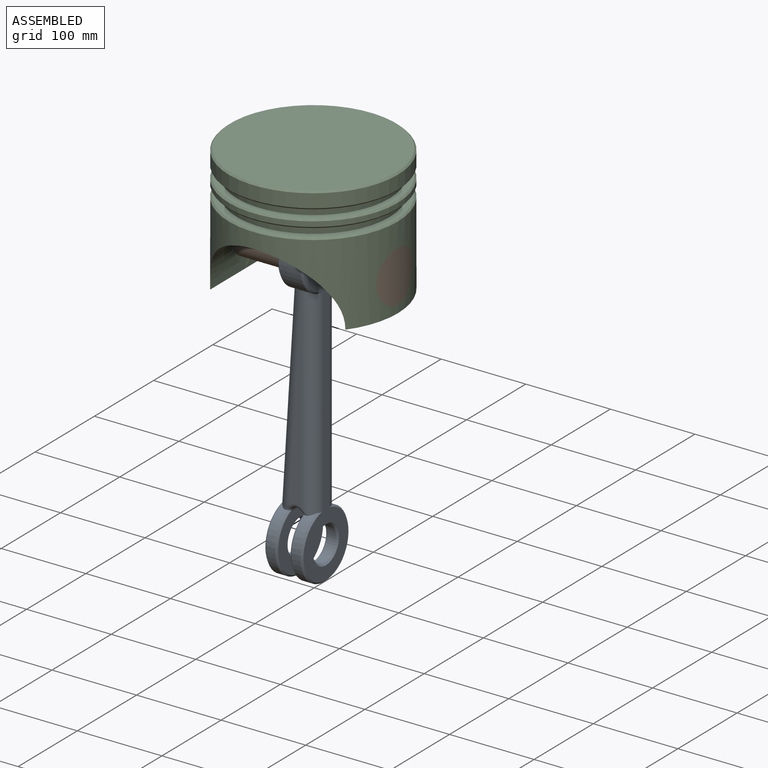
[diagram: assembled view]
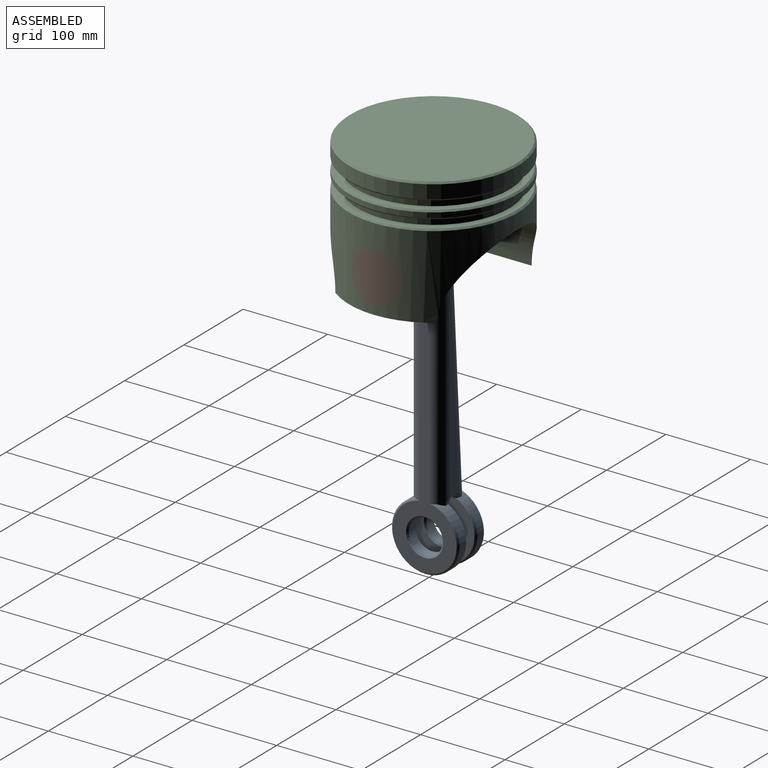
[diagram: assembled view, second angle]
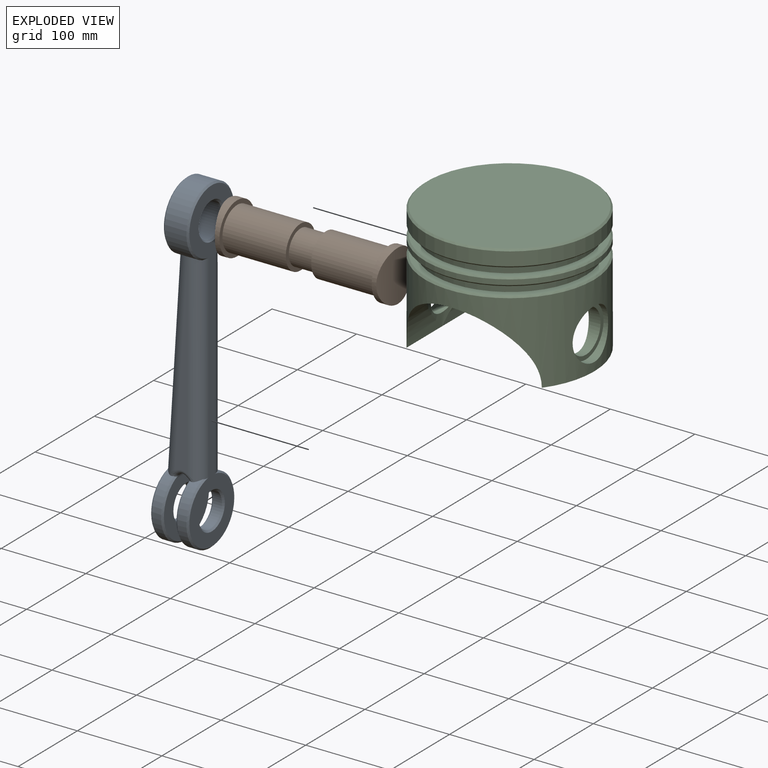
[diagram: exploded view]
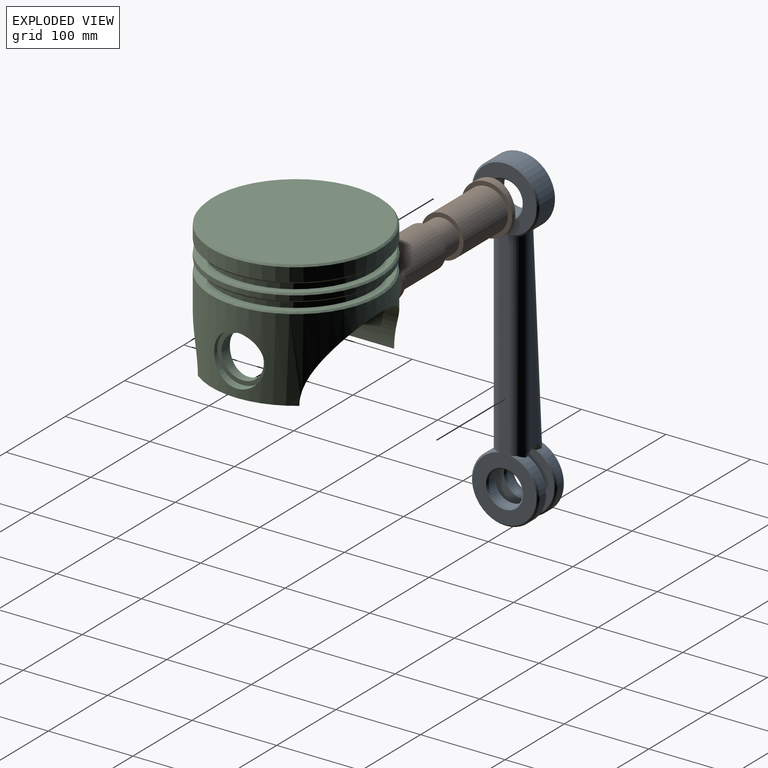
[diagram: exploded view, second angle]
ASSEMBLY  parts=3 mates=2
PART A: 37 faces, bbox 391.3x46.3x81.3 mm
  f0: plane 232.93x14.66mm, normal (0,0,-1), area 1703.8mm2, adj f6,f14,f17,f35
  f1: plane 232.93x14.66mm, normal (0,0,1), area 1703.8mm2, adj f6,f15,f16,f32
  f2: cylinder r=40mm len=80mm, axis (0,1,0), area 2382.3mm2, adj f14,f15,f22,f23,f33,f36
  f3: cylinder r=40mm len=80mm, axis (0,1,0), area 2379.2mm2, adj f16,f17,f24,f25,f31,f34
  f4: cylinder r=20mm len=40mm, axis (0,1,0), area 1382.3mm2, adj f26,f27
  f5: cylinder r=20mm len=40mm, axis (0,1,0), area 1382.3mm2, adj f28,f29
  f6: cylinder r=40mm len=80mm, axis (0,1,0), area 5569mm2, adj f0,f1,f14,f15,f16,f17,f20,f21
  f7: cylinder r=20mm len=40mm, axis (0,1,0), area 3267.3mm2, adj f18,f19
  f8: plane 386x76mm, normal (0,-1,0), area 8421mm2, adj f16,f17,f19,f21,f25,f29
  f9: plane 76x72.64mm, normal (0,1,0), area 2945.3mm2, adj f13,f22,f26
  f10: plane 76x70.5mm, normal (0,-1,0), area 2869.3mm2, adj f23,f27,f30
  f11: plane 76.08x72.7mm, normal (0,1,0), area 2882.5mm2, adj f24,f28,f30,f31,f34
  f12: plane 77.32x76.61mm, normal (0,1,0), area 2974.2mm2, adj f13,f14,f15,f18,f20
  f13: plane 240.79x31.31mm, normal (0.06,1,0), area 2500.2mm2, adj f9,f12,f14,f15,f22
  f14: cylinder r=14.9mm len=241.14mm, axis (1,-0.06,0), area 5523mm2, adj f0,f2,f6,f12,f13,f20,f22,f36
  f15: cylinder r=14.9mm len=241.14mm, axis (-1,0.06,0), area 5523mm2, adj f1,f2,f6,f12,f13,f20,f22,f33
  f16: cylinder r=14.9mm len=239.82mm, axis (1,0,0), area 5509.6mm2, adj f1,f3,f6,f8,f21,f25,f31
  f17: cylinder r=14.9mm len=239.82mm, axis (-1,0,0), area 5509.6mm2, adj f0,f3,f6,f8,f21,f25,f34
  f18: cone r=22mm half-angle=45deg, axis (0,1,0), area 373.2mm2, adj f7,f12
  f19: cone r=20mm half-angle=45deg, axis (0,-1,0), area 373.2mm2, adj f7,f8
  f20: cone r=40mm half-angle=45deg, axis (0,-1,0), area 635.4mm2, adj f6,f12,f14,f15
  f21: cone r=38mm half-angle=45deg, axis (0,1,0), area 642.8mm2, adj f6,f8,f16,f17
  f22: cone r=40mm half-angle=45deg, axis (0,-1,0), area 642.9mm2, adj f2,f9,f13,f14,f15
  f23: cone r=38mm half-angle=45deg, axis (0,1,0), area 599.9mm2, adj f2,f10,f30,f33,f36
  f24: cone r=38mm half-angle=45deg, axis (0,-1,0), area 593.5mm2, adj f3,f11,f31,f34
  f25: cone r=38mm half-angle=45deg, axis (0,1,0), area 642.8mm2, adj f3,f8,f16,f17
  f26: cone r=22mm half-angle=45deg, axis (0,1,0), area 373.2mm2, adj f4,f9
  f27: cone r=20mm half-angle=45deg, axis (0,-1,0), area 373.2mm2, adj f4,f10
  f28: cone r=20mm half-angle=45deg, axis (0,1,0), area 373.2mm2, adj f5,f11
  f29: cone r=20mm half-angle=45deg, axis (0,-1,0), area 373.2mm2, adj f5,f8
  f30: cylinder r=7.5mm len=39.38mm, axis (0,0,1), area 702mm2, adj f10,f11,f23,f31,f32,f33,f34,f35
  f31: bspline ~11.12x10.79mm, area 58.7mm2, adj f3,f11,f16,f24,f30,f32
  f32: torus R=12.5mm, axis (0,0,1), area 91.8mm2, adj f1,f30,f31,f33
  f33: bspline ~12.13x10.52mm, area 61.1mm2, adj f2,f15,f23,f30,f32
  f34: bspline ~11.12x10.79mm, area 58.7mm2, adj f3,f11,f17,f24,f30,f35
  f35: torus R=12.5mm, axis (0,0,1), area 91.8mm2, adj f0,f30,f34,f36
  f36: bspline ~12.13x10.52mm, area 61.1mm2, adj f2,f14,f23,f30,f35
PART B: 11 faces, bbox 200x60x60 mm
  f0: cylinder r=30mm len=60mm, axis (-1,0,0), area 1453.1mm2, adj f7,f10
  f1: cylinder r=30mm len=60mm, axis (1,0,0), area 1452.9mm2, adj f8,f9
  f2: cylinder r=25mm len=75mm, axis (-1,0,0), area 11781mm2, adj f4,f8
  f3: cylinder r=20mm len=40mm, axis (-1,0,0), area 3769.9mm2, adj f4,f5
  f4: plane 50x50mm, normal (-1,0,0), area 706.9mm2, adj f2,f3
  f5: plane 50x50mm, normal (1,0,0), area 706.9mm2, adj f3,f6
  f6: cylinder r=25mm len=75mm, axis (-1,0,0), area 11781mm2, adj f5,f7
  f7: plane 60x60mm, normal (1,0,0), area 863.9mm2, adj f0,f6
  f8: plane 60x60mm, normal (-1,0,0), area 863.9mm2, adj f1,f2
  f9: cylinder r=100mm len=60mm, axis (0,0,-1), area 2860mm2, adj f1
  f10: cylinder r=100mm len=60mm, axis (0,0,-1), area 2860.2mm2, adj f0
PART C: 27 faces, bbox 200x200x150 mm
  f0: cylinder r=25mm len=50mm, axis (-1,0,0), area 1883.5mm2, adj f2,f26
  f1: cylinder r=100mm len=200mm, axis (0,0,-1), area 33520.6mm2, adj f3,f4,f5,f6,f22,f23,f25
  f2: cylinder r=80mm len=160mm, axis (0,0,-1), area 35767.2mm2, adj f0,f5,f6,f7,f8
  f3: plane 120x20mm, normal (0,0,-1), area 1635mm2, adj f1,f5,f6
  f4: plane 120x20mm, normal (0,0,-1), area 1635mm2, adj f1,f5,f6
  f5: cylinder r=80mm len=160mm, axis (0,1,0), area 7620.5mm2, adj f1,f2,f3,f4
  f6: cylinder r=80mm len=160mm, axis (0,1,0), area 7622.5mm2, adj f1,f2,f3,f4
  f7: plane 160x160mm, normal (0,0,-1), area 20106.2mm2, adj f2
  f8: cylinder r=25mm len=50mm, axis (-1,0,0), area 1883.6mm2, adj f2,f24
  f9: plane 196x196mm, normal (0,0,-1), area 4725mm2, adj f11,f19
  f10: plane 196x196mm, normal (0,0,1), area 4725mm2, adj f11,f22
  f11: cylinder r=90mm len=180mm, axis (0,0,1), area 5654.9mm2, adj f9,f10
  f12: cylinder r=100mm len=200mm, axis (0,0,-1), area 3769.9mm2, adj f19,f20
  f13: cylinder r=90mm len=180mm, axis (0,0,1), area 5654.9mm2, adj f14,f15
  f14: plane 196x196mm, normal (0,0,-1), area 4725mm2, adj f13,f21
  f15: plane 196x196mm, normal (0,0,1), area 4725mm2, adj f13,f20
  f16: plane 196x196mm, normal (0,0,1), area 30171.9mm2, adj f18
  f17: cylinder r=100mm len=200mm, axis (0,0,-1), area 10053.1mm2, adj f18,f21
  f18: cone r=98mm half-angle=45deg, axis (0,0,-1), area 1759.4mm2, adj f16,f17
  f19: cone r=100mm half-angle=45deg, axis (0,0,1), area 1759.4mm2, adj f9,f12
  f20: cone r=98mm half-angle=45deg, axis (0,0,-1), area 1759.4mm2, adj f12,f15
  f21: cone r=100mm half-angle=45deg, axis (0,0,1), area 1759.4mm2, adj f14,f17
  f22: cone r=98mm half-angle=45deg, axis (0,0,-1), area 1759.4mm2, adj f1,f10
  f23: cylinder r=30mm len=60mm, axis (-1,0,0), area 1453.5mm2, adj f1,f24
  f24: plane 60x60mm, normal (-1,0,0), area 863.9mm2, adj f8,f23
  f25: cylinder r=30mm len=60mm, axis (1,0,0), area 1453.4mm2, adj f1,f26
  f26: plane 60x60mm, normal (1,0,0), area 863.9mm2, adj f0,f25
PLACE A rot(axis=(0.58,-0.58,0.58),120deg) t=(-10.74,3.09,-406.14)mm
PLACE B t=(-3.24,3.09,-96.14)mm
PLACE C t=(96.76,3.09,-136.14)mm
MATE fastened C.f0 <-> B.f0  axis (1,0,0) through (86.76,3.09,-96.14)mm
MATE revolute A.f7 <-> B.f2  axis (-1,0,0) through (-18.24,3.09,-96.14)mm
